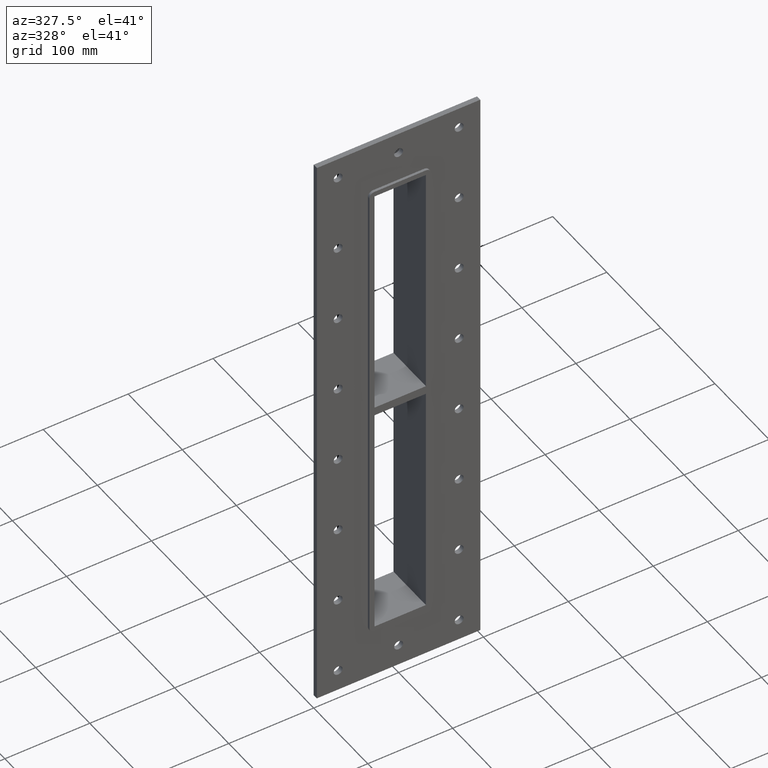
[diagram: clean part render]
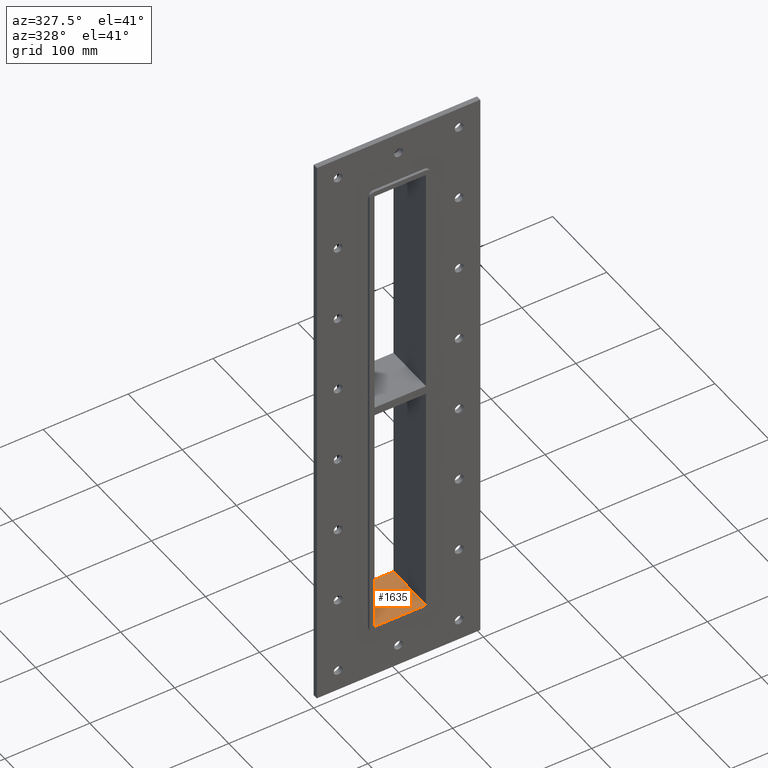
[diagram: same view with one face highlighted and labeled with its STEP entity id]
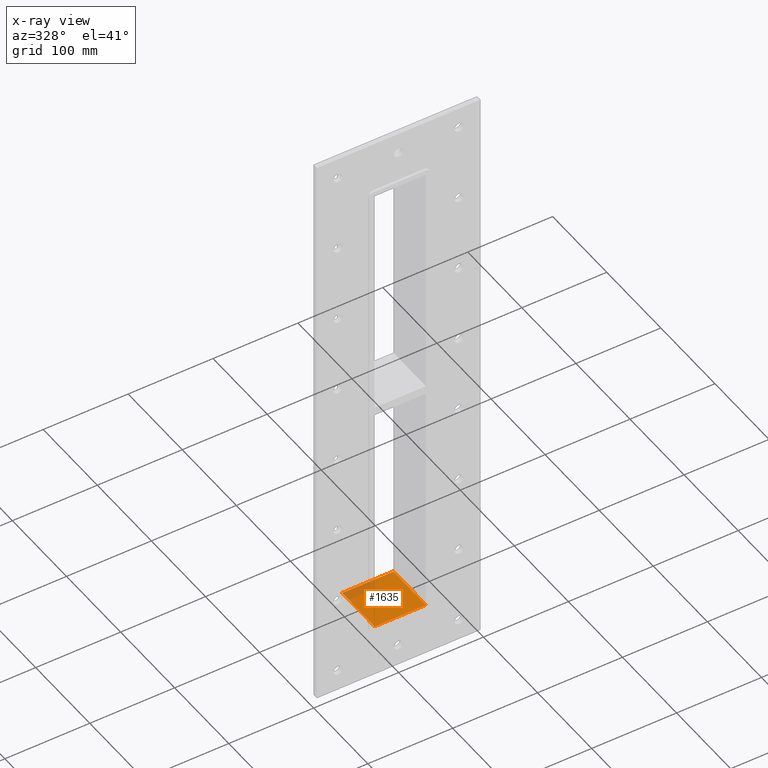
[diagram: x-ray of the same camera — body ghosted, the highlighted face saturated]
A machine part, auxiliary view. The second image highlights one B-rep face of the part: STEP entity #1635.
The next image is the same camera in x-ray: the body ghosted, the highlighted face saturated — about 12% of this face is hidden behind the body in this view.
In plain terms, the highlighted planar face has unit normal (0, 0, -1).
Its self-contained STEP definition (entity closure, byte-faithful):
#689=CARTESIAN_POINT('',(30.250000000000004,57.0,-283.00000000000006));
#690=VERTEX_POINT('',#689);
#697=CARTESIAN_POINT('',(30.250000000000004,-3.0,-283.00000000000006));
#698=VERTEX_POINT('',#697);
#699=CARTESIAN_POINT('',(30.250000000000004,56.999999999999993,-283.00000000000006));
#700=DIRECTION('',(0.0,-1.0,0.0));
#701=VECTOR('',#700,59.999999999999993);
#702=LINE('',#699,#701);
#703=EDGE_CURVE('',#690,#698,#702,.T.);
#1147=CARTESIAN_POINT('',(-30.250000000000004,-3.0,-283.00000000000006));
#1148=VERTEX_POINT('',#1147);
#1155=CARTESIAN_POINT('',(-30.250000000000004,57.0,-283.00000000000006));
#1156=VERTEX_POINT('',#1155);
#1157=CARTESIAN_POINT('',(-30.250000000000004,-3.0,-283.00000000000006));
#1158=DIRECTION('',(0.0,1.0,0.0));
#1159=VECTOR('',#1158,60.0);
#1160=LINE('',#1157,#1159);
#1161=EDGE_CURVE('',#1148,#1156,#1160,.T.);
#1501=CARTESIAN_POINT('',(30.250000000000004,-3.0,-283.00000000000006));
#1502=DIRECTION('',(-1.0,0.0,0.0));
#1503=VECTOR('',#1502,60.500000000000014);
#1504=LINE('',#1501,#1503);
#1505=EDGE_CURVE('',#698,#1148,#1504,.T.);
#1619=CARTESIAN_POINT('',(30.250000000000004,0.0,-283.00000000000006));
#1620=DIRECTION('',(0.0,0.0,-1.0));
#1621=DIRECTION('',(-1.0,0.0,0.0));
#1622=AXIS2_PLACEMENT_3D('',#1619,#1620,#1621);
#1623=PLANE('',#1622);
#1624=ORIENTED_EDGE('',*,*,#1161,.F.);
#1625=ORIENTED_EDGE('',*,*,#1505,.F.);
#1626=ORIENTED_EDGE('',*,*,#703,.F.);
#1627=CARTESIAN_POINT('',(-30.250000000000007,57.0,-283.00000000000006));
#1628=DIRECTION('',(1.0,0.0,0.0));
#1629=VECTOR('',#1628,60.500000000000014);
#1630=LINE('',#1627,#1629);
#1631=EDGE_CURVE('',#1156,#690,#1630,.T.);
#1632=ORIENTED_EDGE('',*,*,#1631,.F.);
#1633=EDGE_LOOP('',(#1624,#1625,#1626,#1632));
#1634=FACE_OUTER_BOUND('',#1633,.T.);
#1635=ADVANCED_FACE('',(#1634),#1623,.F.);